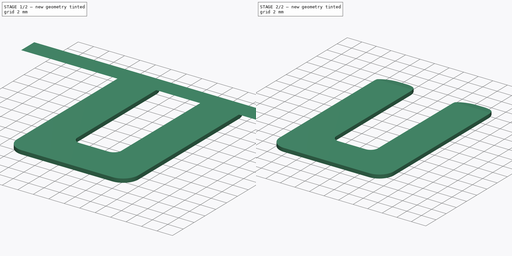
[diagram: build sequence overview — one tinted view per stage of 2, left to right]
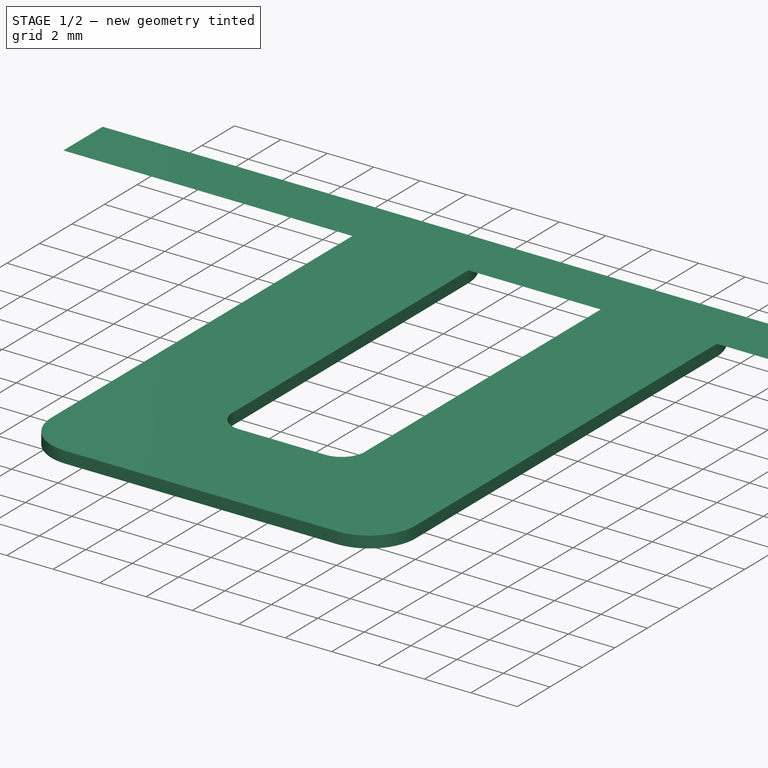
[diagram: stage 1 of 2 — iso view after this stage's code; geometry added in this stage tinted green]
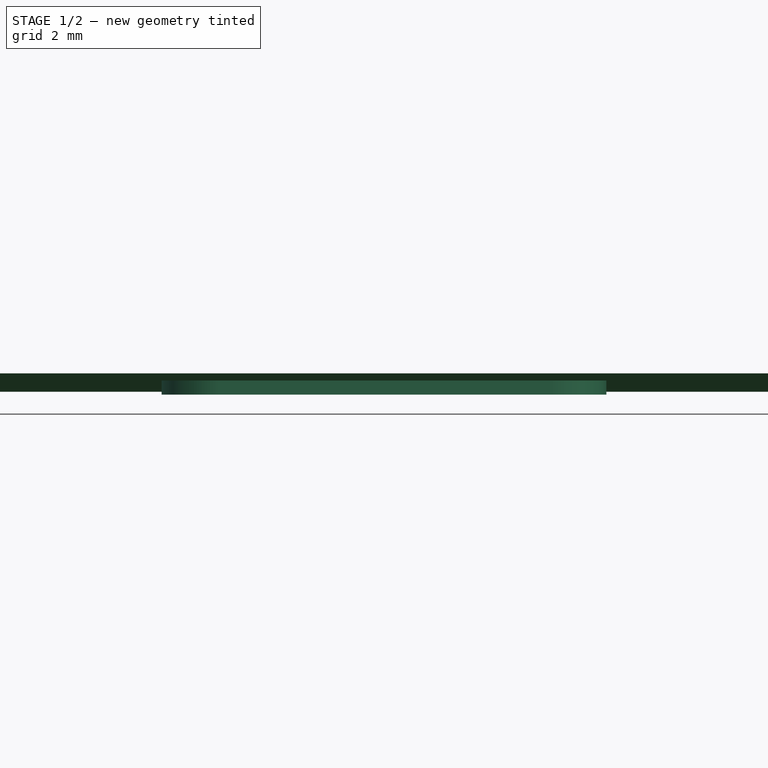
[diagram: stage 1 of 2 — front view after this stage's code; geometry added in this stage tinted green]
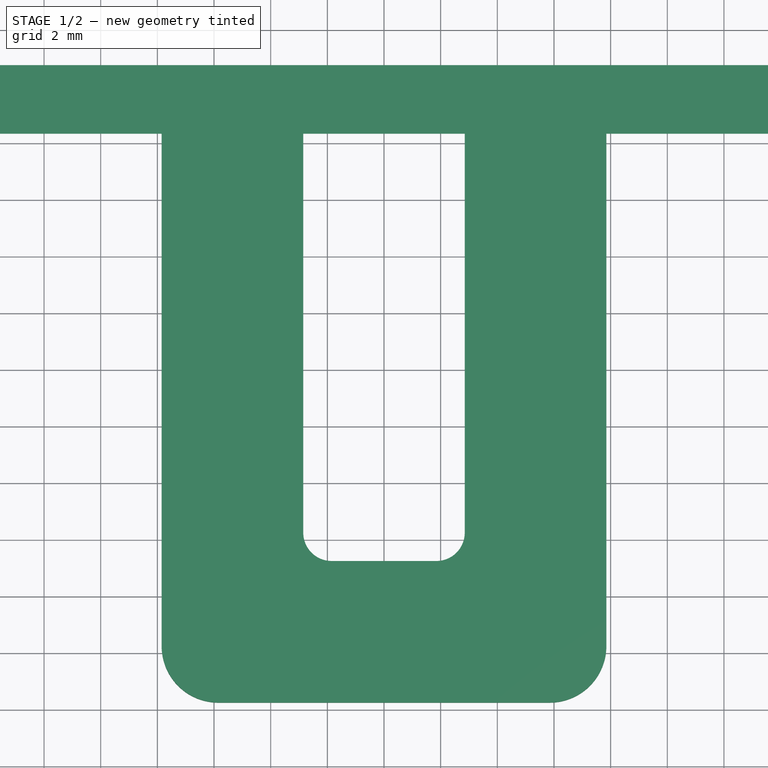
[diagram: stage 1 of 2 — top view after this stage's code; geometry added in this stage tinted green]
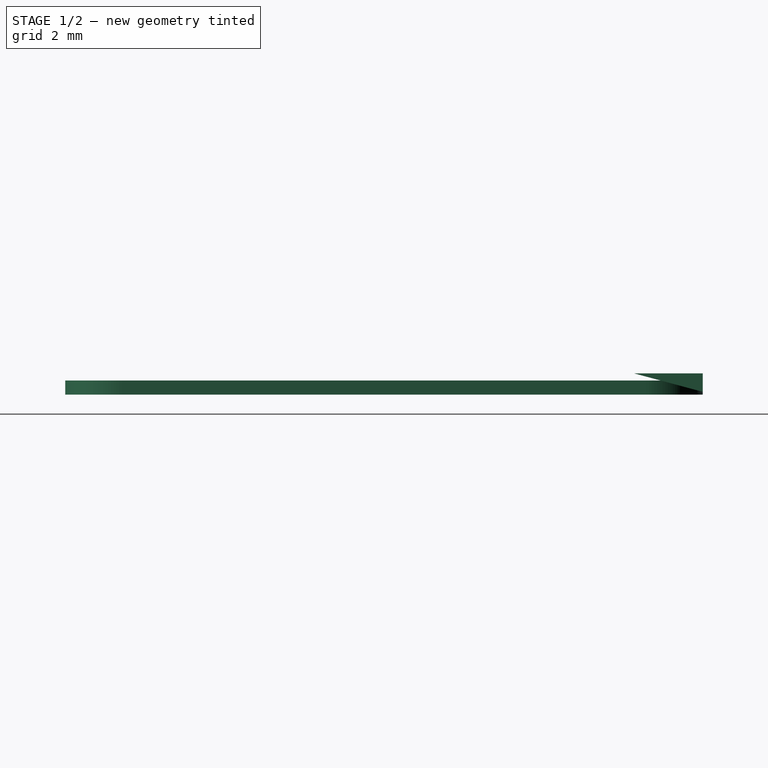
[diagram: stage 1 of 2 — right view after this stage's code; geometry added in this stage tinted green]
FCSTD DOCUMENT  (FreeCAD 1.0R39109 (Git))
Label: Transformer_Spacer_0.5mm
License: All rights reserved
LicenseURL: http://en.wikipedia.org/wiki/All_rights_reserved
objects: Sketcher::SketchObject×2, Part::Extrusion×2, Spreadsheet::Sheet×1, Part::Cut×1
note: 7 computed .brp shape members not serialized (recipe doc carries the construction recipe); baked Part::Feature solids carry a one-line shape summary decoded from their .brp

FEATURE [Spreadsheet::Sheet] Spreadsheet  label="Param"
FEATURE [Sketcher::SketchObject] Sketch
  ArcFitTolerance = 1e-06
  FullyConstrained = true
  MakeInternals = false
  expr: Constraints[50] = 17.5 / 2
  sketch-geometry (26):
    g0: LineSegment StartX=-2.85 StartY=6.75 StartZ=0 EndX=-2.85 EndY=-7.75 EndZ=0
    g1: LineSegment StartX=-1.85 StartY=-8.75 StartZ=0 EndX=1.85 EndY=-8.75 EndZ=0
    g2: LineSegment StartX=2.85 StartY=-7.75 StartZ=0 EndX=2.85 EndY=6.75 EndZ=0
    g3: LineSegment StartX=4.85 StartY=8.75 StartZ=0 EndX=5.85 EndY=8.75 EndZ=0
    g4: LineSegment StartX=7.85 StartY=6.75 StartZ=0 EndX=7.85 EndY=-11.75 EndZ=0
    g5: LineSegment StartX=5.85 StartY=-13.75 StartZ=0 EndX=-5.85 EndY=-13.75 EndZ=0
    g6: LineSegment StartX=-7.85 StartY=-11.75 StartZ=0 EndX=-7.85 EndY=6.75 EndZ=0
    g7: LineSegment StartX=-5.85 StartY=8.75 StartZ=0 EndX=-4.85 EndY=8.75 EndZ=0
    g8: ArcOfCircle CenterX=-4.85 CenterY=6.75 CenterZ=0 NormalX=0 NormalY=0 NormalZ=1 AngleXU=0 Radius=2 StartAngle=0 EndAngle=1.5708
    g9: GeomPoint [constr] X=-2.85 Y=8.75 Z=0
    g10: ArcOfCircle CenterX=-5.85 CenterY=6.75 CenterZ=0 NormalX=0 NormalY=0 NormalZ=1 AngleXU=0 Radius=2 StartAngle=1.5708 EndAngle=3.14159
    g11: GeomPoint [constr] X=-7.85 Y=8.75 Z=0
    g12: ArcOfCircle CenterX=-5.85 CenterY=-11.75 CenterZ=0 NormalX=0 NormalY=0 NormalZ=1 AngleXU=0 Radius=2 StartAngle=3.14159 EndAngle=4.71239
    g13: GeomPoint [constr] X=-7.85 Y=-13.75 Z=0
    g14: ArcOfCircle CenterX=5.85 CenterY=-11.75 CenterZ=0 NormalX=0 NormalY=0 NormalZ=1 AngleXU=0 Radius=2 StartAngle=4.71239 EndAngle=6.28319
    g15: GeomPoint [constr] X=7.85 Y=-13.75 Z=0
    g16: ArcOfCircle CenterX=5.85 CenterY=6.75 CenterZ=0 NormalX=0 NormalY=0 NormalZ=1 AngleXU=0 Radius=2 StartAngle=0 EndAngle=1.5708
    g17: GeomPoint [constr] X=7.85 Y=8.75 Z=0
    g18: ArcOfCircle CenterX=4.85 CenterY=6.75 CenterZ=0 NormalX=0 NormalY=0 NormalZ=1 AngleXU=0 Radius=2 StartAngle=1.5708 EndAngle=3.14159
    g19: GeomPoint [constr] X=2.85 Y=8.75 Z=0
    g20: ArcOfCircle CenterX=1.85 CenterY=-7.75 CenterZ=0 NormalX=0 NormalY=0 NormalZ=1 AngleXU=0 Radius=1 StartAngle=4.71239 EndAngle=6.28319
    g21: GeomPoint [constr] X=2.85 Y=-8.75 Z=0
    g22: ArcOfCircle CenterX=-1.85 CenterY=-7.75 CenterZ=0 NormalX=0 NormalY=0 NormalZ=1 AngleXU=0 Radius=1 StartAngle=3.14159 EndAngle=4.71239
    g23: GeomPoint [constr] X=-2.85 Y=-8.75 Z=0
    g24: LineSegment [constr] StartX=1.85 StartY=-7.75 StartZ=0 EndX=0 EndY=0 EndZ=0
    g25: LineSegment [constr] StartX=0 StartY=0 StartZ=0 EndX=-1.85 EndY=-7.75 EndZ=0
  constraints (60):
    c: Vertical(g0)
    c: Horizontal(g1)
    c: Vertical(g2)
    c: Horizontal(g3)
    c: Vertical(g4)
    c: Horizontal(g5)
    c: Vertical(g6)
    c: Horizontal(g7)
    c: PointOnObject(g9,g7)
    c: PointOnObject(g9,g0)
    c: Tangent(g7,g8) = 1.5708
    c: Tangent(g0,g8) = 1.5708
    c: PointOnObject(g11,g7)
    c: PointOnObject(g11,g6)
    c: Tangent(g7,g10) = 1.5708
    c: Tangent(g6,g10) = 1.5708
    c: PointOnObject(g13,g6)
    c: PointOnObject(g13,g5)
    c: Tangent(g6,g12) = 1.5708
    c: Tangent(g5,g12) = 1.5708
    c: PointOnObject(g15,g4)
    c: PointOnObject(g15,g5)
    c: Tangent(g4,g14) = 1.5708
    c: Tangent(g5,g14) = 1.5708
    c: PointOnObject(g17,g3)
    c: PointOnObject(g17,g4)
    c: Tangent(g3,g16) = 1.5708
    c: Tangent(g4,g16) = 1.5708
    c: PointOnObject(g19,g3)
    c: PointOnObject(g19,g2)
    c: Tangent(g3,g18) = 1.5708
    c: Tangent(g2,g18) = 1.5708
    c: PointOnObject(g21,g2)
    c: PointOnObject(g21,g1)
    c: Tangent(g2,g20) = -1.5708
    c: Tangent(g1,g20) = -1.5708
    c: PointOnObject(g23,g0)
    c: PointOnObject(g23,g1)
    c: Tangent(g0,g22) = -1.5708
    c: Tangent(g1,g22) = -1.5708
    c: Equal(g18,g16)
    c: Equal(g16,g8)
    c: Equal(g8,g10)
    c: Equal(g22,g20)
    c: Equal(g12,g14)
    c: Equal(g0,g2)
    c: Radius(g8) = 2
    c: DistanceX(g6,g0) = 5
    c: Equal(g3,g7)
    c: DistanceY(g1,g7) = 17.5
    c: DistanceY(g1,g-1) = 8.75
    c: Radius(g22) = 1
    c: DistanceX(g0,g2) = 5.7
    c: Coincident(g24,g20)
    c: Coincident(g24,g-1)
    c: Coincident(g25,g24)
    c: Coincident(g25,g22)
    c: Equal(g25,g24)
    c: Radius(g12) = 2
    c: DistanceY(g5,g1) = 5
FEATURE [Part::Extrusion] Extrude
  Base = -> Sketch
  Dir = (0,0,1)
  DirMode = 2
  FaceMakerClass = Part::FaceMakerBullseye
  FaceMakerMode = 3
  LengthFwd = 0.5
  LengthRev = 0
  Solid = true
  Symmetric = false
FEATURE [Sketcher::SketchObject] Sketch001
  ArcFitTolerance = 1e-06
  FullyConstrained = false
  MakeInternals = false
  Placement = pos=(0,0,0) rot=(0.57735,0.57735,0.57735;2.0944rad)
  expr: Constraints[5] = 17.5 / 2
  sketch-geometry (3):
    g0: LineSegment StartX=8.75 StartY=0.1 StartZ=0 EndX=6.32982 EndY=0.748485 EndZ=0
    g1: LineSegment StartX=6.32982 StartY=0.748485 StartZ=0 EndX=8.75 EndY=0.748485 EndZ=0
    g2: LineSegment StartX=8.75 StartY=0.748485 StartZ=0 EndX=8.75 EndY=0.1 EndZ=0
  constraints (8):
    c: Coincident(g1,g0)
    c: Horizontal(g1)
    c: Coincident(g2,g1)
    c: Coincident(g2,g0)
    c: Vertical(g2)
    c: DistanceX(g-1,g1) = 8.75
    c: DistanceY(g-1,g0) = 0.1
    c: Angle(g0,g1) = 0.261799
FEATURE [Part::Extrusion] Extrude001
  Base = -> Sketch001
  Dir = (1,0,0)
  DirMode = 2
  FaceMakerClass = Part::FaceMakerBullseye
  FaceMakerMode = 3
  LengthFwd = 20
  LengthRev = 20
  Solid = true
  Symmetric = false
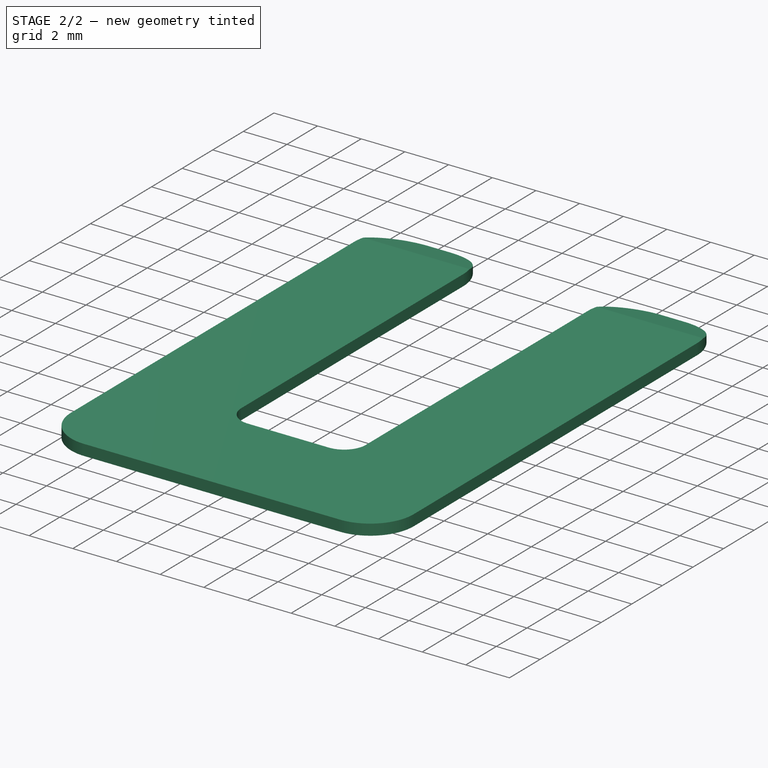
[diagram: stage 2 of 2 — iso view after this stage's code; geometry added in this stage tinted green]
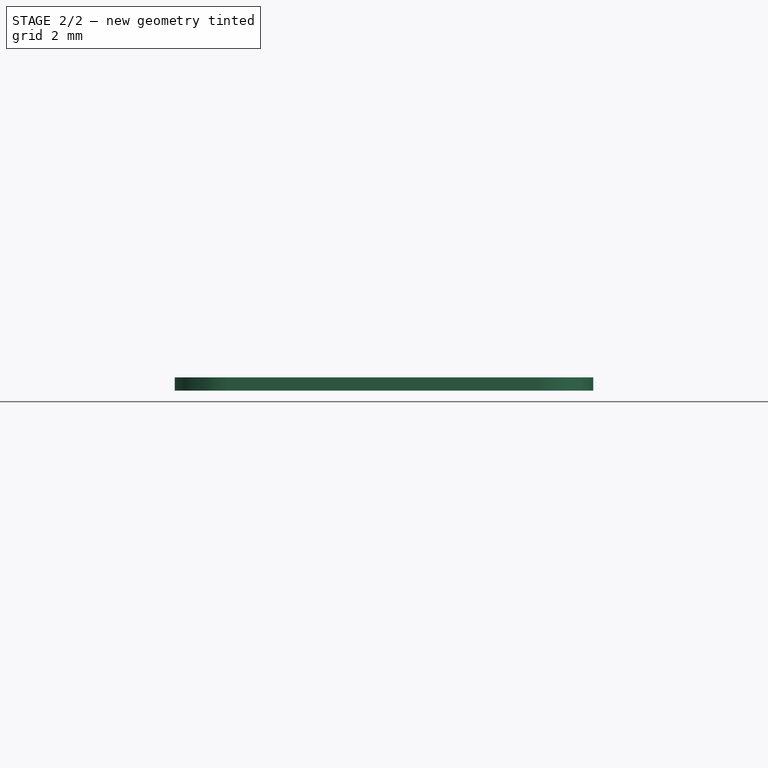
[diagram: stage 2 of 2 — front view after this stage's code; geometry added in this stage tinted green]
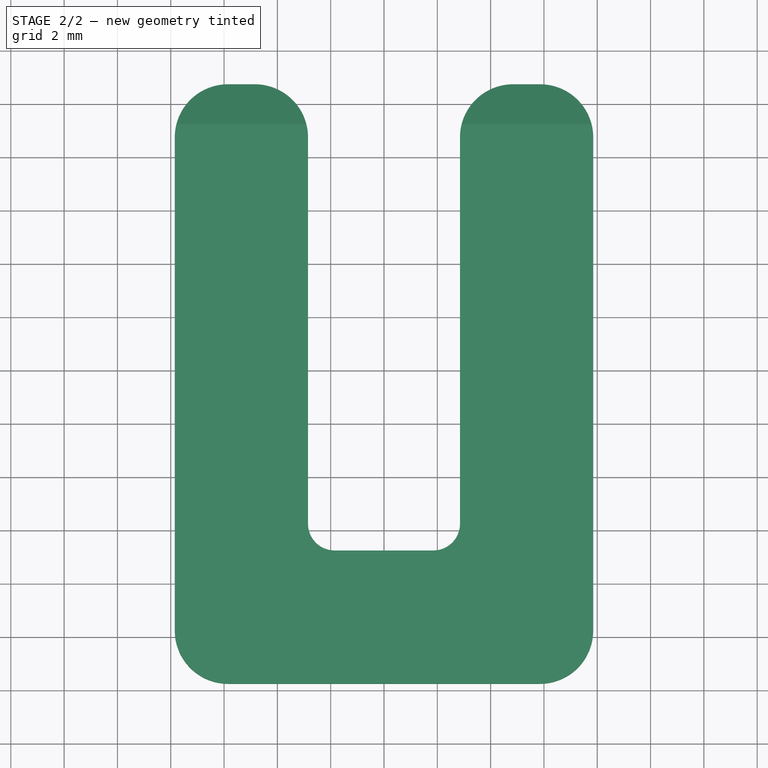
[diagram: stage 2 of 2 — top view after this stage's code; geometry added in this stage tinted green]
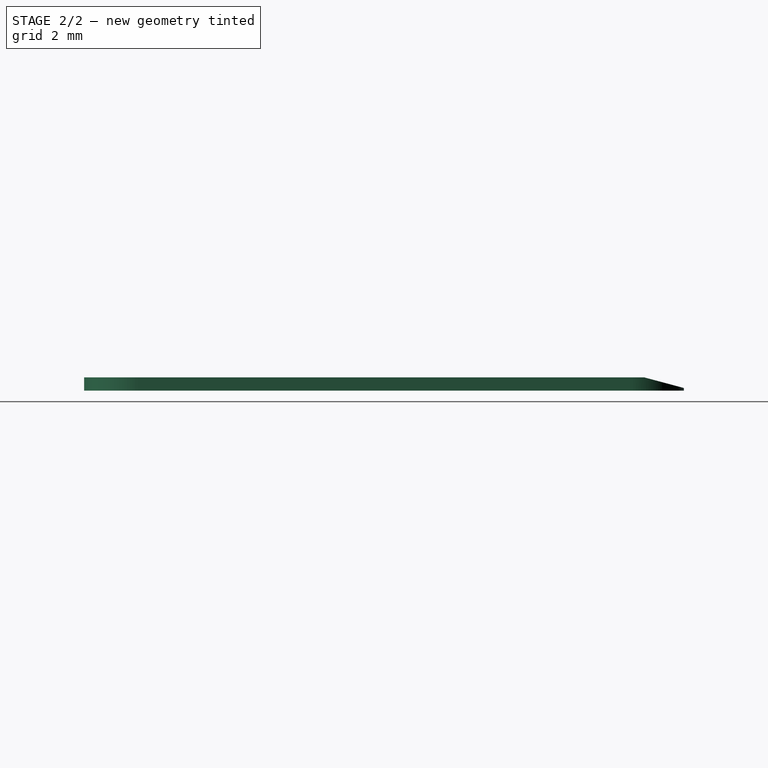
[diagram: stage 2 of 2 — right view after this stage's code; geometry added in this stage tinted green]
FEATURE [Part::Cut] Cut
  Base = -> Extrude
  Tool = -> Extrude001
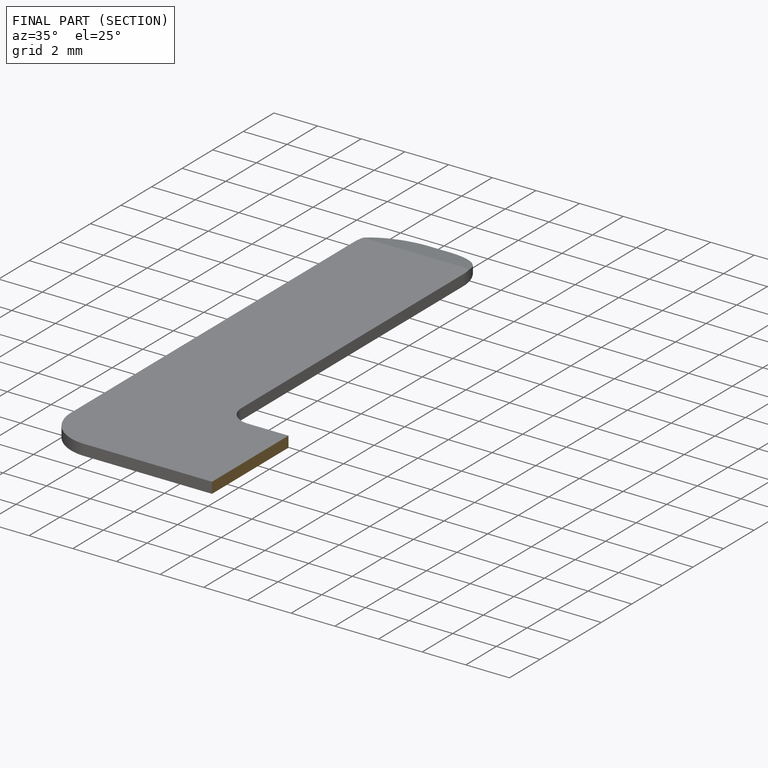
[diagram: finished part — half-section view (interior)]
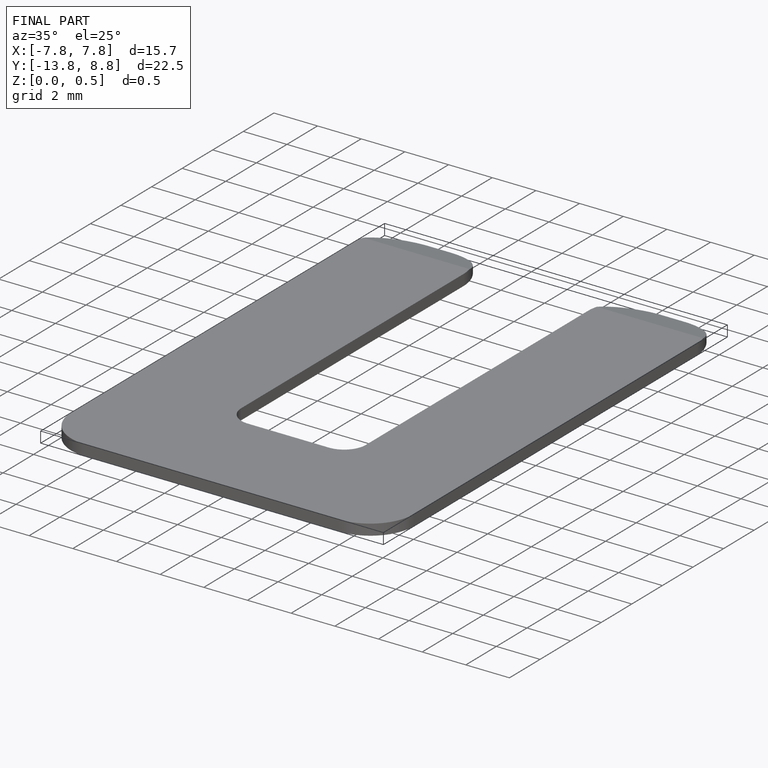
[diagram: finished part — iso view with bounding-box wireframe]
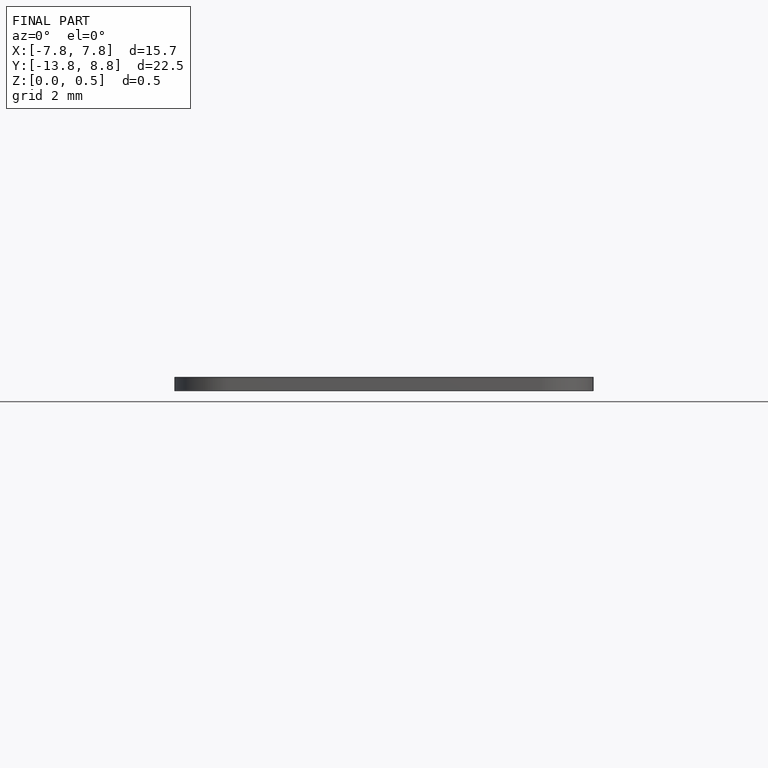
[diagram: finished part — front view with bounding-box wireframe]
